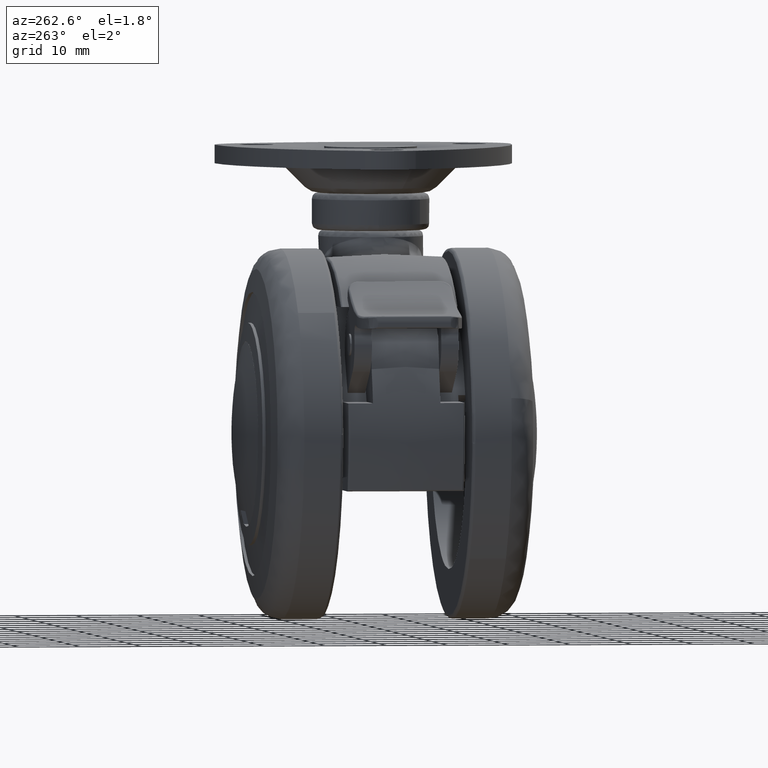
[diagram: clean part render]
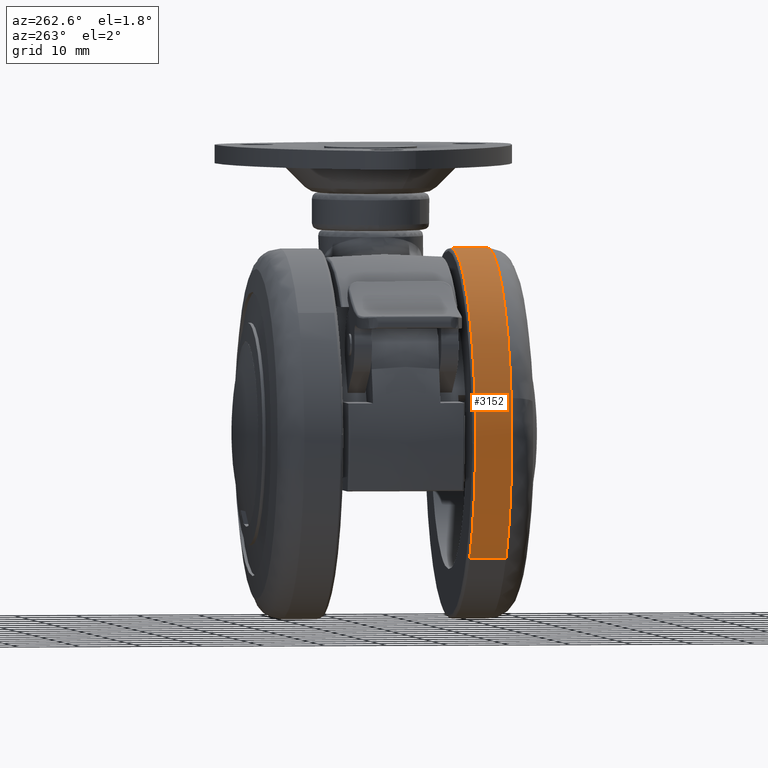
[diagram: same view with one face highlighted and labeled with its STEP entity id]
A machine part, auxiliary view. The second image highlights one B-rep face of the part: STEP entity #3152.
In plain terms, the highlighted face is a freeform B-spline surface patch.
Its self-contained STEP definition (entity closure, byte-faithful):
#3024=CARTESIAN_POINT('',(-22.686023273068901,-17.066119125354117,-19.630189710081133));
#3025=CARTESIAN_POINT('',(-40.166544295554615,-17.066119125354128,0.571525739353610));
#3026=CARTESIAN_POINT('',(-22.118320104303709,-17.066119125354120,20.267706228469802));
#3027=CARTESIAN_POINT('',(-1.850613875833911,-17.066119125354120,42.386026332773511));
#3028=CARTESIAN_POINT('',(20.267706228469802,-17.066119125354120,22.118320104303709));
#3029=CARTESIAN_POINT('',(-22.686023273068901,-10.848347021788161,-19.630189710081133));
#3030=CARTESIAN_POINT('',(-40.166544295554615,-10.848347021788159,0.571525739353610));
#3031=CARTESIAN_POINT('',(-22.118320104303709,-10.848347021788159,20.267706228469802));
#3032=CARTESIAN_POINT('',(-1.850613875833911,-10.848347021788157,42.386026332773511));
#3033=CARTESIAN_POINT('',(20.267706228469802,-10.848347021788159,22.118320104303709));
#3041=(BOUNDED_SURFACE()B_SPLINE_SURFACE(2,1,((#3024,#3029),(#3025,#3030),(#3026,#3031),(#3027,#3032),(#3028,#3033)),.UNSPECIFIED.,.F.,.F.,.U.)B_SPLINE_SURFACE_WITH_KNOTS((3,2,3),(2,2),(0.0,45.729177285989671,95.434804770761048),(0.0,6.217772103565968),.UNSPECIFIED.)GEOMETRIC_REPRESENTATION_ITEM()RATIONAL_B_SPLINE_SURFACE(((0.956886118190660,0.956886118190660),(0.730538238691624,0.730538238691624),(1.0,1.0),(0.707106781186548,0.707106781186548),(1.0,1.0)))REPRESENTATION_ITEM('')SURFACE());
#3042=CARTESIAN_POINT('',(-22.686025438544970,-16.918165000004869,-19.630187207504651));
#3043=VERTEX_POINT('',#3042);
#3044=CARTESIAN_POINT('',(-29.273079754010858,-16.918165000343230,6.564053756278911));
#3045=VERTEX_POINT('',#3044);
#3046=CARTESIAN_POINT('',(-22.686025438544977,-16.918165000004873,-19.630187207504644));
#3047=CARTESIAN_POINT('',(-29.999999999999996,-16.918165000004848,-11.177643622255461));
#3048=CARTESIAN_POINT('',(-30.0,-16.918165000004851,0.0));
#3049=CARTESIAN_POINT('',(-30.000000000000004,-16.918165000004848,3.322277389768200));
#3050=CARTESIAN_POINT('',(-29.273079754010862,-16.918165000343226,6.564053756278911));
#3058=(BOUNDED_CURVE()B_SPLINE_CURVE(2,(#3046,#3047,#3048,#3049,#3050),.UNSPECIFIED.,.F.,.U.)B_SPLINE_CURVE_WITH_KNOTS((3,2,3),(0.635882136615294,0.750000000000000,0.787436176722999),.UNSPECIFIED.)CURVE()GEOMETRIC_REPRESENTATION_ITEM()RATIONAL_B_SPLINE_CURVE((0.854663300282523,0.866302606676558,1.0,0.956140790798126,0.925416950449151))REPRESENTATION_ITEM(''));
#3059=EDGE_CURVE('',#3043,#3045,#3058,.T.);
#3060=ORIENTED_EDGE('',*,*,#3059,.T.);
#3061=CARTESIAN_POINT('',(0.0,-16.918165000004851,30.0));
#3062=VERTEX_POINT('',#3061);
#3063=CARTESIAN_POINT('',(-29.273079754010862,-16.918165000343222,6.564053756278911));
#3064=CARTESIAN_POINT('',(-24.017916571113602,-16.918165000004851,30.0));
#3065=CARTESIAN_POINT('',(0.0,-16.918165000004851,30.0));
#3073=(BOUNDED_CURVE()B_SPLINE_CURVE(2,(#3063,#3064,#3065),.UNSPECIFIED.,.F.,.U.)B_SPLINE_CURVE_WITH_KNOTS((3,3),(0.787436176722999,1.0),.UNSPECIFIED.)CURVE()GEOMETRIC_REPRESENTATION_ITEM()RATIONAL_B_SPLINE_CURVE((0.925416950449152,0.750965990388421,1.0))REPRESENTATION_ITEM(''));
#3074=EDGE_CURVE('',#3045,#3062,#3073,.T.);
#3075=ORIENTED_EDGE('',*,*,#3074,.T.);
#3076=CARTESIAN_POINT('',(20.267706030027139,-16.918165000004851,22.118320286142911));
#3077=VERTEX_POINT('',#3076);
#3078=CARTESIAN_POINT('',(0.0,-16.918165000004851,30.0));
#3079=CARTESIAN_POINT('',(11.666361645730056,-16.918165000004851,30.0));
#3080=CARTESIAN_POINT('',(20.267706030027139,-16.918165000004844,22.118320286142918));
#3088=(BOUNDED_CURVE()B_SPLINE_CURVE(2,(#3078,#3079,#3080),.UNSPECIFIED.,.F.,.U.)B_SPLINE_CURVE_WITH_KNOTS((3,3),(0.0,0.118415206375282),.UNSPECIFIED.)CURVE()GEOMETRIC_REPRESENTATION_ITEM()RATIONAL_B_SPLINE_CURVE((1.0,0.861267956193138,0.853959781172309))REPRESENTATION_ITEM(''));
#3089=EDGE_CURVE('',#3062,#3077,#3088,.T.);
#3090=ORIENTED_EDGE('',*,*,#3089,.T.);
#3091=CARTESIAN_POINT('',(20.267706097579939,-10.999999999979501,22.118320224234200));
#3092=VERTEX_POINT('',#3091);
#3093=CARTESIAN_POINT('',(20.267706030027139,-16.918165000004851,22.118320286142911));
#3094=CARTESIAN_POINT('',(20.267706097579939,-10.999999999979501,22.118320224234200));
#3095=QUASI_UNIFORM_CURVE('',1,(#3093,#3094),.UNSPECIFIED.,.F.,.U.);
#3096=EDGE_CURVE('',#3077,#3092,#3095,.T.);
#3097=ORIENTED_EDGE('',*,*,#3096,.T.);
#3098=CARTESIAN_POINT('',(0.0,-11.0,30.0));
#3099=VERTEX_POINT('',#3098);
#3100=CARTESIAN_POINT('',(0.0,-11.0,30.0));
#3101=CARTESIAN_POINT('',(11.666361751210520,-10.999999999999998,29.999999999999989));
#3102=CARTESIAN_POINT('',(20.267706097579936,-10.999999999979496,22.118320224234196));
#3110=(BOUNDED_CURVE()B_SPLINE_CURVE(2,(#3100,#3101,#3102),.UNSPECIFIED.,.F.,.U.)B_SPLINE_CURVE_WITH_KNOTS((3,3),(0.0,0.118415207297391),.UNSPECIFIED.)CURVE()GEOMETRIC_REPRESENTATION_ITEM()RATIONAL_B_SPLINE_CURVE((1.0,0.861267955112820,0.853959781058491))REPRESENTATION_ITEM(''));
#3111=EDGE_CURVE('',#3099,#3092,#3110,.T.);
#3112=ORIENTED_EDGE('',*,*,#3111,.F.);
#3113=CARTESIAN_POINT('',(-29.990525678497470,-10.999999999923910,-0.753902863360767));
#3114=VERTEX_POINT('',#3113);
#3115=CARTESIAN_POINT('',(-29.990525678497473,-10.999999999923912,-0.753902863360767));
#3116=CARTESIAN_POINT('',(-30.0,-11.000000000000007,-0.377010963762060));
#3117=CARTESIAN_POINT('',(-30.0,-11.0,0.0));
#3118=CARTESIAN_POINT('',(-29.999999999999993,-11.0,29.999999999999993));
#3119=CARTESIAN_POINT('',(0.0,-11.0,30.0));
#3127=(BOUNDED_CURVE()B_SPLINE_CURVE(2,(#3115,#3116,#3117,#3118,#3119),.UNSPECIFIED.,.F.,.U.)B_SPLINE_CURVE_WITH_KNOTS((3,2,3),(0.745579891769100,0.750000000000000,1.0),.UNSPECIFIED.)CURVE()GEOMETRIC_REPRESENTATION_ITEM()RATIONAL_B_SPLINE_CURVE((0.989826157679977,0.994821521090991,1.0,0.707106781186547,1.0))REPRESENTATION_ITEM(''));
#3128=EDGE_CURVE('',#3114,#3099,#3127,.T.);
#3129=ORIENTED_EDGE('',*,*,#3128,.F.);
#3130=CARTESIAN_POINT('',(-22.686025437082669,-10.999999999973021,-19.630187209184118));
#3131=VERTEX_POINT('',#3130);
#3132=CARTESIAN_POINT('',(-22.686025437082669,-10.999999999973021,-19.630187209184118));
#3133=CARTESIAN_POINT('',(-29.720369707430752,-10.999999999951871,-11.500804063210072));
#3134=CARTESIAN_POINT('',(-29.990525678497473,-10.999999999923910,-0.753902863360767));
#3142=(BOUNDED_CURVE()B_SPLINE_CURVE(2,(#3132,#3133,#3134),.UNSPECIFIED.,.F.,.U.)B_SPLINE_CURVE_WITH_KNOTS((3,3),(0.635882136603995,0.745579891769099),.UNSPECIFIED.)CURVE()GEOMETRIC_REPRESENTATION_ITEM()RATIONAL_B_SPLINE_CURVE((0.854663300280218,0.865851783344211,0.989826157679974))REPRESENTATION_ITEM(''));
#3143=EDGE_CURVE('',#3131,#3114,#3142,.T.);
#3144=ORIENTED_EDGE('',*,*,#3143,.F.);
#3145=CARTESIAN_POINT('',(-22.686025438544970,-16.918165000004869,-19.630187207504651));
#3146=CARTESIAN_POINT('',(-22.686025437082669,-10.999999999973021,-19.630187209184118));
#3147=QUASI_UNIFORM_CURVE('',1,(#3145,#3146),.UNSPECIFIED.,.F.,.U.);
#3148=EDGE_CURVE('',#3043,#3131,#3147,.T.);
#3149=ORIENTED_EDGE('',*,*,#3148,.F.);
#3150=EDGE_LOOP('',(#3060,#3075,#3090,#3097,#3112,#3129,#3144,#3149));
#3151=FACE_OUTER_BOUND('',#3150,.T.);
#3152=ADVANCED_FACE('',(#3151),#3041,.T.);